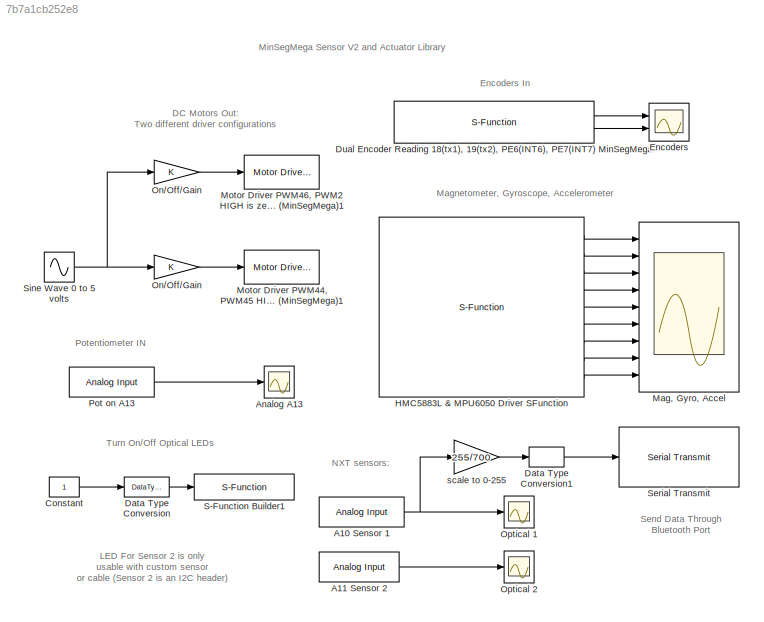
MODEL slx_7b7a1cb252e8
KIND model
BLOCK [Reference] A10 Sensor 1  REF=arduinolib/Analog Input
  Ports = [0, 1]
  SourceBlock = arduinolib/Analog Input
  SourceType = Arduino Analog Input
  pinNumber = 10
  sampleTime = -1
BLOCK [Reference] A11 Sensor 2  REF=arduinolib/Analog Input
  Ports = [0, 1]
  SourceBlock = arduinolib/Analog Input
  SourceType = Arduino Analog Input
  pinNumber = 11
  sampleTime = -1
BLOCK [Scope] Analog A13
  DataFormat = StructureWithTime
  Floating = off
  NumInputPorts = 1
  Ports = [1]
  SampleTime = 0
  SaveName = ScopeData6
  ShowLegends = off
  TimeRange = 30
  YMax = 600
  YMin = 275
BLOCK [Constant] Constant
  SampleTime = -1
BLOCK [DataTypeConversion] Data Type Conversion
  OutDataTypeStr = boolean
  RndMeth = Floor
  SaturateOnIntegerOverflow = off
BLOCK [DataTypeConversion] Data Type Conversion1
  OutDataTypeStr = uint8
  RndMeth = Floor
  SaturateOnIntegerOverflow = off
BLOCK [S-Function] Dual Encoder Reading 18(tx1), 19(tx2), PE6(INT6), PE7(INT7) MinSegMega 
  CopyFcn = set_param(gcbh,'LinkStatus','none')
  EnableBusSupport = off
  FunctionName = sf_QuadEncoder_18_19_INT6_INT7
  InitFcn = try, set_param(gcb,'FunctionName','sf_QuadEncoder_18_19_INT6_INT7'), end
  OpenFcn = sfunctionwizard(gcbh)
  Parameters = uint8([0 1]),uint8([18 6]),uint8([19 7])
  Ports = [0, 2]
  PreSaveFcn = try, set_param(gcb,'FunctionName','sf_QuadEncoder_18_19_INT6_INT7'), end
  SFunctionModules = sf_QuadEncoder_18_19_INT6_INT7_wrapper
BLOCK [Scope] Encoders
  DataFormat = StructureWithTime
  Floating = off
  NumInputPorts = 2
  Ports = [2]
  SampleTime = 0
  ShowLegends = off
  TimeRange = 30
  YMax = 750~1000
  YMin = -1500~0
BLOCK [S-Function] HMC5883L & MPU6050 Driver SFunction
  CopyFcn = set_param(gcbh,'LinkStatus','none')
  EnableBusSupport = off
  FunctionName = sf_HMC5883L_MPU6050
  InitFcn = try, set_param(gcb,'FunctionName','sf_HMC5883L_MPU6050'), end
  OpenFcn = sfunctionwizard(gcbh)
  Ports = [0, 9]
  PreSaveFcn = try, set_param(gcb,'FunctionName','sf_HMC5883L_MPU6050'), end
  SFunctionModules = sf_HMC5883L_MPU6050_wrapper
BLOCK [Scope] Mag, Gyro, Accel
  DataFormat = StructureWithTime
  Floating = off
  NumInputPorts = 9
  Ports = [9]
  SampleTime = 0
  SaveName = ScopeData1
  ShowLegends = off
  TimeRange = 10
  YMax = -100~-275~0~300~700~40000~4000~1000~18500
  YMin = -225~-450~-1~-700~-400~-30000~-1000~-2500~15500
BLOCK [Reference] Motor Driver PWM44, PWM45 HIGH is zero speed (MinSegMega)1  REF=MinSegLibrary_MinSegMega/Motor Driver
PWM44, PWM45
HIGH is zero speed
(MinSegMega)
  Ports = [1]
  SourceBlock = MinSegLibrary_MinSegMega/Motor Driver\nPWM44, PWM45\nHIGH is zero speed\n(MinSegMega)
  SourceType = SubSystem
BLOCK [Reference] Motor Driver PWM46, PWM2 HIGH is zero speed (MinSegMega)1  REF=MinSegLibrary_MinSegMega/Motor Driver
PWM46, PWM2
HIGH is zero speed
(MinSegMega)
  Ports = [1]
  SourceBlock = MinSegLibrary_MinSegMega/Motor Driver\nPWM46, PWM2\nHIGH is zero speed\n(MinSegMega)
  SourceType = SubSystem
BLOCK [Gain] On//Off//Gain
  OutDataTypeStr = int16
  ParamDataTypeStr = Inherit: Inherit via internal rule
  SaturateOnIntegerOverflow = off
BLOCK [Gain] On//Off//Gain 
  OutDataTypeStr = int16
  ParamDataTypeStr = Inherit: Inherit via internal rule
  SaturateOnIntegerOverflow = off
BLOCK [Scope] Optical 1
  DataFormat = StructureWithTime
  Floating = off
  NumInputPorts = 1
  Ports = [1]
  SampleTime = 0
  SaveName = ScopeData4
  ShowLegends = off
  TimeRange = 30
  YMax = 1100
  YMin = 300
BLOCK [Scope] Optical 2
  DataFormat = StructureWithTime
  Floating = off
  NumInputPorts = 1
  Ports = [1]
  SampleTime = 0
  SaveName = ScopeData3
  ShowLegends = off
  TimeRange = 30
  YMax = 1100
  YMin = 100
BLOCK [Reference] Pot on A13  REF=arduinolib/Analog Input
  Ports = [0, 1]
  SourceBlock = arduinolib/Analog Input
  SourceType = Arduino Analog Input
  pinNumber = 13
  sampleTime = -1
BLOCK [S-Function] S-Function Builder1
  CopyFcn = set_param(gcbh,'LinkStatus','none')
  EnableBusSupport = off
  FunctionName = sfcn_A9_out
  InitFcn = try, set_param(gcb,'FunctionName','sfcn_A9_out'), end
  OpenFcn = sfunctionwizard(gcbh)
  Parameters = uint8(9)
  Ports = [1]
  PreSaveFcn = try, set_param(gcb,'FunctionName','sfcn_A9_out'), end
  SFunctionModules = sfcn_A9_out_wrapper
BLOCK [Reference] Serial Transmit  REF=arduinolib/Serial Transmit
  Ports = [1]
  SourceBlock = arduinolib/Serial Transmit
  SourceType = Arduino Serial Transmit
  portNumber = 3
BLOCK [Sin] Sine Wave 0 to 5 volts
  Amplitude = 5
  Frequency = 50*2*pi
  Ports = [0, 1]
  SampleTime = .1
  Samples = 30
  SineType = Sample based
BLOCK [Gain] scale to 0-255
  Gain = 255/700
  OutDataTypeStr = int16
  ParamDataTypeStr = Inherit: Inherit via internal rule
  SaturateOnIntegerOverflow = off
ANNOTATION (root): DC Motors Out: Two different driver configurations
ANNOTATION (root): Encoders In
ANNOTATION (root): LED For Sensor 2 is only usable with custom sensor or cable (Sensor 2 is an I2C header)
ANNOTATION (root): Magnetometer, Gyroscope, Accelerometer
ANNOTATION (root): MinSegMega Sensor V2 and Actuator Library
ANNOTATION (root): NXT sensors:
ANNOTATION (root): Potentiometer IN
ANNOTATION (root): Send Data Through Bluetooth Port
ANNOTATION (root): Turn On/Off Optical LEDs
NET A10 Sensor 1:1 -> Optical 1:1, scale to 0-255:1
LINE A11 Sensor 2:1 -> Optical 2:1
LINE Constant:1 -> Data Type Conversion:1
LINE Data Type Conversion1:1 -> Serial Transmit:1
LINE Data Type Conversion:1 -> S-Function Builder1:1
LINE Dual Encoder Reading 18(tx1), 19(tx2), PE6(INT6), PE7(INT7) MinSegMega :1 -> Encoders:1
LINE Dual Encoder Reading 18(tx1), 19(tx2), PE6(INT6), PE7(INT7) MinSegMega :2 -> Encoders:2
LINE HMC5883L & MPU6050 Driver SFunction:1 -> Mag, Gyro, Accel:1
LINE HMC5883L & MPU6050 Driver SFunction:2 -> Mag, Gyro, Accel:2
LINE HMC5883L & MPU6050 Driver SFunction:3 -> Mag, Gyro, Accel:3
LINE HMC5883L & MPU6050 Driver SFunction:4 -> Mag, Gyro, Accel:4
LINE HMC5883L & MPU6050 Driver SFunction:5 -> Mag, Gyro, Accel:5
LINE HMC5883L & MPU6050 Driver SFunction:6 -> Mag, Gyro, Accel:6
LINE HMC5883L & MPU6050 Driver SFunction:7 -> Mag, Gyro, Accel:7
LINE HMC5883L & MPU6050 Driver SFunction:8 -> Mag, Gyro, Accel:8
LINE HMC5883L & MPU6050 Driver SFunction:9 -> Mag, Gyro, Accel:9
LINE On//Off//Gain :1 -> Motor Driver PWM44, PWM45 HIGH is zero speed (MinSegMega)1:1
LINE On//Off//Gain:1 -> Motor Driver PWM46, PWM2 HIGH is zero speed (MinSegMega)1:1
LINE Pot on A13:1 -> Analog A13:1
NET Sine Wave 0 to 5 volts:1 -> On//Off//Gain :1, On//Off//Gain:1
LINE scale to 0-255:1 -> Data Type Conversion1:1
note: NET lines group one-source signal fan-out (src -> all destinations, sorted); 1:1 wires keep LINE
